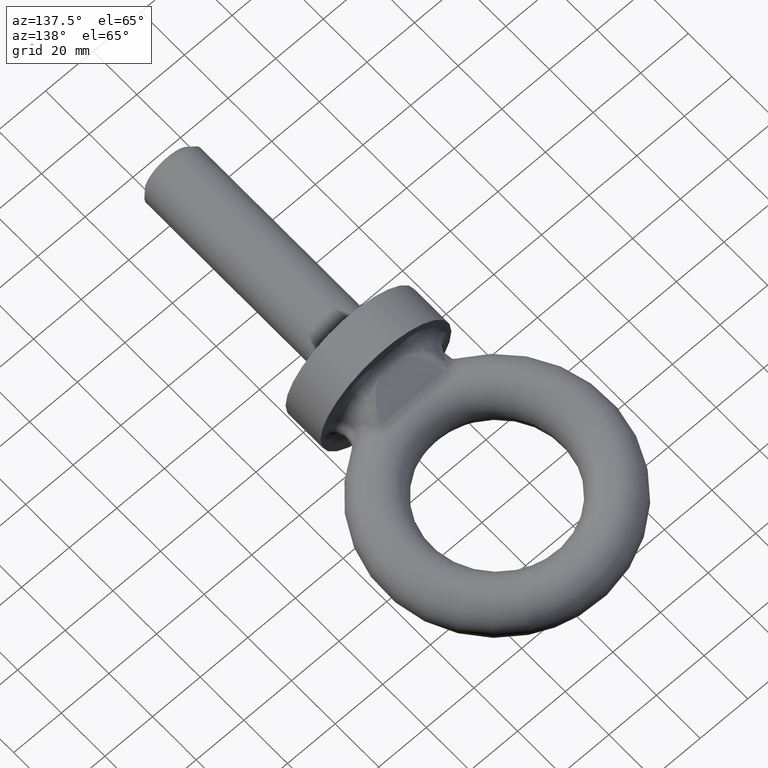
[diagram: clean part render]
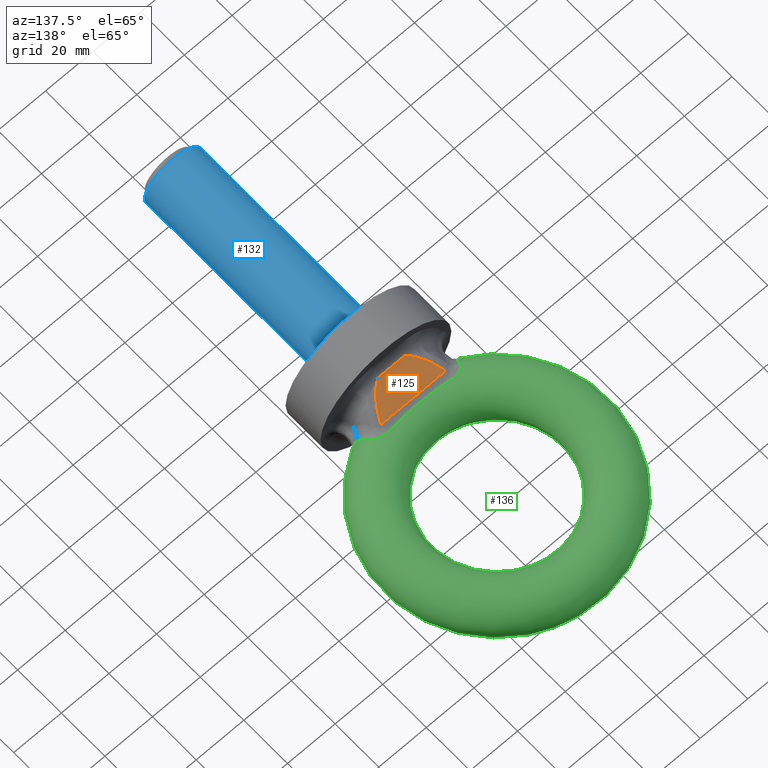
[diagram: same view with three faces highlighted in distinct colors, each labeled with its STEP entity id]
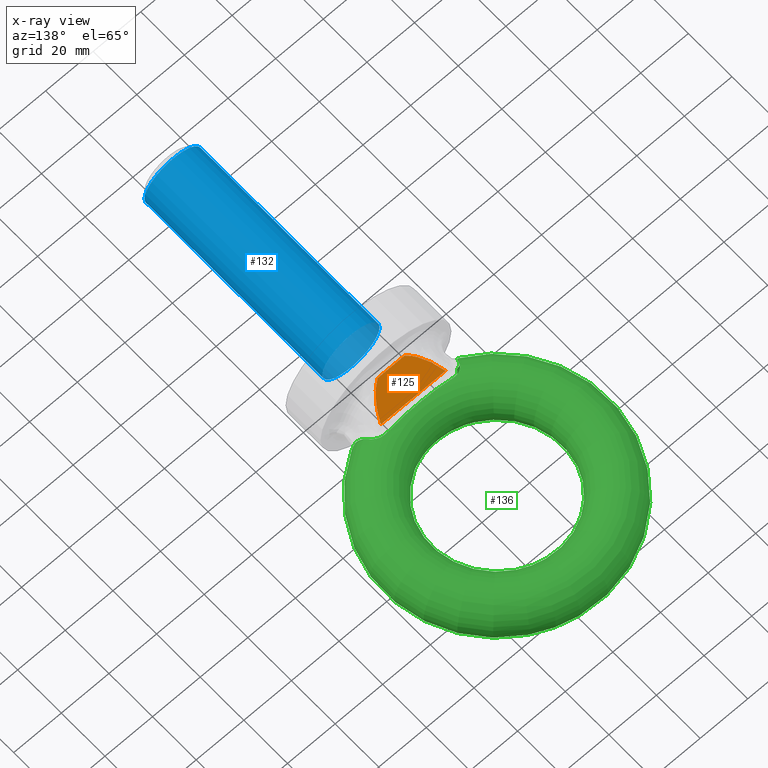
[diagram: x-ray of the same camera — body ghosted, the three highlighted faces saturated]
A machine part, auxiliary view with three faces highlighted in distinct colors.
The next image is the same camera in x-ray (body ghosted, the three faces saturated) — at least one of them is partly hidden behind the body in this view.
Their STEP definitions:

[orange] entity #125 — the highlighted planar face has unit normal (0, 0.5369, 0.8437).
#90=PLANE('',#664);
#95=LINE('',#958,#99);
#99=VECTOR('',#754,1.);
#115=ELLIPSE('',#662,29.8020681380693,16.);
#116=ELLIPSE('',#663,29.8020681380693,16.);
#125=ADVANCED_FACE('',(#188),#90,.T.);
#188=FACE_OUTER_BOUND('',#226,.T.);
#226=EDGE_LOOP('',(#329,#330,#331,#332));
#329=ORIENTED_EDGE('',*,*,#546,.T.);
#330=ORIENTED_EDGE('',*,*,#547,.T.);
#331=ORIENTED_EDGE('',*,*,#548,.T.);
#332=ORIENTED_EDGE('',*,*,#549,.T.);
#495=VERTEX_POINT('',#956);
#496=VERTEX_POINT('',#957);
#497=VERTEX_POINT('',#959);
#498=VERTEX_POINT('',#961);
#546=EDGE_CURVE('',#495,#496,#115,.T.);
#547=EDGE_CURVE('',#496,#497,#95,.T.);
#548=EDGE_CURVE('',#497,#498,#116,.T.);
#549=EDGE_CURVE('',#498,#495,#619,.T.);
#619=B_SPLINE_CURVE_WITH_KNOTS('',3,(#962,#963,#964,#965,#966,#967),
 .UNSPECIFIED.,.F.,.F.,(4,2,4),(0.,0.5,1.),.UNSPECIFIED.);
#662=AXIS2_PLACEMENT_3D('',#955,#752,#753);
#663=AXIS2_PLACEMENT_3D('',#960,#755,#756);
#664=AXIS2_PLACEMENT_3D('',#968,#757,#758);
#752=DIRECTION('',(0.,0.536875492193159,0.843661487732107));
#753=DIRECTION('',(-2.86159311182566E-18,0.843661487732107,-0.536875492193159));
#754=DIRECTION('',(1.,2.41421590200679E-18,-1.53631921036795E-18));
#755=DIRECTION('',(0.,0.536875492193159,0.843661487732107));
#756=DIRECTION('',(-2.86159311182566E-18,0.843661487732107,-0.536875492193159));
#757=DIRECTION('',(0.,0.536875492193159,0.843661487732108));
#758=DIRECTION('',(0.,-0.843661487732107,0.536875492193159));
#955=CARTESIAN_POINT('',(-2.53957528944313E-17,41.8798815578344,2.53098446319632));
#956=CARTESIAN_POINT('',(-13.5622338915121,28.5397753589314,11.0201429534073));
#957=CARTESIAN_POINT('',(-5.67805799946811,18.3735131025101,17.48958257113));
#958=CARTESIAN_POINT('',(55.,18.3735131025101,17.48958257113));
#959=CARTESIAN_POINT('',(5.67805799946812,18.3735131025101,17.48958257113));
#960=CARTESIAN_POINT('',(-2.53957528944313E-17,41.8798815578344,2.53098446319632));
#961=CARTESIAN_POINT('',(13.5600953366957,28.5344080076716,11.0235585405726));
#962=CARTESIAN_POINT('',(13.5600953366957,28.5344080076716,11.0235585405726));
#963=CARTESIAN_POINT('',(9.03966839015902,28.395960063825,11.1116617775659));
#964=CARTESIAN_POINT('',(4.51934471005141,28.6289298005924,10.9634083087139));
#965=CARTESIAN_POINT('',(-4.52143339906573,28.6246055655633,10.9661600946415));
#966=CARTESIAN_POINT('',(-9.04188650270365,28.3920785490715,11.114131832409));
#967=CARTESIAN_POINT('',(-13.562233891512,28.5397753589313,11.0201429534073));
#968=CARTESIAN_POINT('',(55.,16.,19.));

[blue] entity #132 — the highlighted cylindrical surface (bore or boss wall) has radius 12 mm, axis along (-0, 1, 0).
#80=FACE_BOUND('',#233,.T.);
#81=FACE_BOUND('',#234,.T.);
#107=CYLINDRICAL_SURFACE('',#672,12.);
#132=ADVANCED_FACE('',(#80,#81),#107,.T.);
#233=EDGE_LOOP('',(#354));
#234=EDGE_LOOP('',(#355));
#277=CIRCLE('',#670,12.);
#278=CIRCLE('',#671,12.);
#354=ORIENTED_EDGE('',*,*,#563,.T.);
#355=ORIENTED_EDGE('',*,*,#564,.F.);
#504=VERTEX_POINT('',#1133);
#505=VERTEX_POINT('',#1135);
#563=EDGE_CURVE('',#504,#504,#277,.T.);
#564=EDGE_CURVE('',#505,#505,#278,.T.);
#670=AXIS2_PLACEMENT_3D('',#1132,#770,#771);
#671=AXIS2_PLACEMENT_3D('',#1134,#772,#773);
#672=AXIS2_PLACEMENT_3D('',#1136,#774,#775);
#770=DIRECTION('',(-2.41421590200679E-18,1.,0.));
#771=DIRECTION('',(-1.,0.,0.));
#772=DIRECTION('',(-2.41421590200679E-18,1.,0.));
#773=DIRECTION('',(-1.,-2.41421590200679E-18,0.));
#774=DIRECTION('',(-2.41421590200679E-18,1.,0.));
#775=DIRECTION('',(-1.,0.,0.));
#1132=CARTESIAN_POINT('',(2.68822940688455E-16,-81.6,0.));
#1133=CARTESIAN_POINT('',(-12.,-81.6,0.));
#1134=CARTESIAN_POINT('',(7.18229230847018E-17,0.,0.));
#1135=CARTESIAN_POINT('',(-12.,-2.89705908240814E-17,0.));
#1136=CARTESIAN_POINT('',(2.74617058853272E-16,-84.,0.));

[green] entity #136 — the highlighted toroidal blend (fillet) surface has major radius 37.25 mm and minor (blend) radius 10.25 mm.
#75=TOROIDAL_SURFACE('',#682,37.25,10.25);
#136=ADVANCED_FACE('',(#195),#75,.T.);
#195=FACE_OUTER_BOUND('',#241,.T.);
#241=EDGE_LOOP('',(#373,#374,#375,#376,#377,#378,#379,#380,#381,#382,#383,
#384));
#373=ORIENTED_EDGE('',*,*,#539,.T.);
#374=ORIENTED_EDGE('',*,*,#579,.T.);
#375=ORIENTED_EDGE('',*,*,#580,.T.);
#376=ORIENTED_EDGE('',*,*,#581,.T.);
#377=ORIENTED_EDGE('',*,*,#582,.T.);
#378=ORIENTED_EDGE('',*,*,#583,.T.);
#379=ORIENTED_EDGE('',*,*,#530,.T.);
#380=ORIENTED_EDGE('',*,*,#584,.T.);
#381=ORIENTED_EDGE('',*,*,#585,.T.);
#382=ORIENTED_EDGE('',*,*,#586,.T.);
#383=ORIENTED_EDGE('',*,*,#587,.T.);
#384=ORIENTED_EDGE('',*,*,#588,.T.);
#481=VERTEX_POINT('',#876);
#482=VERTEX_POINT('',#881);
#489=VERTEX_POINT('',#916);
#490=VERTEX_POINT('',#921);
#520=VERTEX_POINT('',#1196);
#521=VERTEX_POINT('',#1201);
#522=VERTEX_POINT('',#1208);
#523=VERTEX_POINT('',#1215);
#524=VERTEX_POINT('',#1230);
#525=VERTEX_POINT('',#1235);
#526=VERTEX_POINT('',#1242);
#527=VERTEX_POINT('',#1249);
#530=EDGE_CURVE('',#482,#481,#614,.T.);
#539=EDGE_CURVE('',#490,#489,#617,.T.);
#579=EDGE_CURVE('',#489,#520,#635,.T.);
#580=EDGE_CURVE('',#520,#521,#636,.T.);
#581=EDGE_CURVE('',#521,#522,#637,.T.);
#582=EDGE_CURVE('',#522,#523,#638,.T.);
#583=EDGE_CURVE('',#523,#482,#639,.T.);
#584=EDGE_CURVE('',#481,#524,#640,.T.);
#585=EDGE_CURVE('',#524,#525,#641,.T.);
#586=EDGE_CURVE('',#525,#526,#642,.T.);
#587=EDGE_CURVE('',#526,#527,#643,.T.);
#588=EDGE_CURVE('',#527,#490,#644,.T.);
#614=B_SPLINE_CURVE_WITH_KNOTS('',3,(#877,#878,#879,#880),.UNSPECIFIED.,
 .F.,.F.,(4,4),(0.,1.),.UNSPECIFIED.);
#617=B_SPLINE_CURVE_WITH_KNOTS('',3,(#917,#918,#919,#920),.UNSPECIFIED.,
 .F.,.F.,(4,4),(0.,1.),.UNSPECIFIED.);
#635=B_SPLINE_CURVE_WITH_KNOTS('',3,(#1190,#1191,#1192,#1193,#1194,#1195),
 .UNSPECIFIED.,.F.,.F.,(4,2,4),(0.,0.5,1.),.UNSPECIFIED.);
#636=B_SPLINE_CURVE_WITH_KNOTS('',3,(#1197,#1198,#1199,#1200),
 .UNSPECIFIED.,.F.,.F.,(4,4),(0.,1.),.UNSPECIFIED.);
#637=B_SPLINE_CURVE_WITH_KNOTS('',3,(#1202,#1203,#1204,#1205,#1206,#1207),
 .UNSPECIFIED.,.F.,.F.,(4,2,4),(0.,0.5,1.),.UNSPECIFIED.);
#638=B_SPLINE_CURVE_WITH_KNOTS('',3,(#1209,#1210,#1211,#1212,#1213,#1214),
 .UNSPECIFIED.,.F.,.F.,(4,2,4),(0.,0.5,1.),.UNSPECIFIED.);
#639=B_SPLINE_CURVE_WITH_KNOTS('',3,(#1216,#1217,#1218,#1219,#1220,#1221),
 .UNSPECIFIED.,.F.,.F.,(4,2,4),(0.,0.5,1.),.UNSPECIFIED.);
#640=B_SPLINE_CURVE_WITH_KNOTS('',3,(#1222,#1223,#1224,#1225,#1226,#1227,
#1228,#1229),.UNSPECIFIED.,.F.,.F.,(4,2,2,4),(0.,0.5,0.75,1.),
 .UNSPECIFIED.);
#641=B_SPLINE_CURVE_WITH_KNOTS('',3,(#1231,#1232,#1233,#1234),
 .UNSPECIFIED.,.F.,.F.,(4,4),(0.,1.),.UNSPECIFIED.);
#642=B_SPLINE_CURVE_WITH_KNOTS('',3,(#1236,#1237,#1238,#1239,#1240,#1241),
 .UNSPECIFIED.,.F.,.F.,(4,2,4),(0.,0.5,1.),.UNSPECIFIED.);
#643=B_SPLINE_CURVE_WITH_KNOTS('',3,(#1243,#1244,#1245,#1246,#1247,#1248),
 .UNSPECIFIED.,.F.,.F.,(4,2,4),(0.,0.5,1.),.UNSPECIFIED.);
#644=B_SPLINE_CURVE_WITH_KNOTS('',3,(#1250,#1251,#1252,#1253,#1254,#1255),
 .UNSPECIFIED.,.F.,.F.,(4,2,4),(0.,0.5,1.),.UNSPECIFIED.);
#682=AXIS2_PLACEMENT_3D('',#1256,#796,#797);
#796=DIRECTION('',(0.,0.,-1.));
#797=DIRECTION('',(-1.,0.,0.));
#876=CARTESIAN_POINT('',(21.2537566685825,25.3476544270065,3.91341136858138));
#877=CARTESIAN_POINT('',(19.0355916038639,28.9138105195791,8.7788686517937));
#878=CARTESIAN_POINT('',(19.7343796624757,27.1566755917826,7.64313530935981));
#879=CARTESIAN_POINT('',(20.704983203704,25.9971067883695,5.91687220851728));
#880=CARTESIAN_POINT('',(21.2537566685825,25.3476544270065,3.91341136858138));
#881=CARTESIAN_POINT('',(19.0355916038639,28.9138105195791,8.77886865179369));
#916=CARTESIAN_POINT('',(-21.2849532670671,25.3702663515625,-3.73888776212214));
#917=CARTESIAN_POINT('',(-19.0391300583216,28.9591136672677,-8.75708808110228));
#918=CARTESIAN_POINT('',(-19.7550981471637,27.1679461507102,-7.58799765965243));
#919=CARTESIAN_POINT('',(-20.7457068890813,26.0042235816082,-5.80709330561124));
#920=CARTESIAN_POINT('',(-21.2849532670671,25.3702663515625,-3.73888776212214));
#921=CARTESIAN_POINT('',(-19.0391300583216,28.9591136672677,-8.75708808110228));
#1190=CARTESIAN_POINT('',(-21.2849532670671,25.3702663515625,-3.73888776212214));
#1191=CARTESIAN_POINT('',(-22.355992240219,25.4924885346494,-2.76798647418481));
#1192=CARTESIAN_POINT('',(-23.1901268872623,25.5926163938078,-1.45829888139813));
#1193=CARTESIAN_POINT('',(-23.1904657199435,25.5926567589696,1.4573789978017));
#1194=CARTESIAN_POINT('',(-22.35509699363,25.492386373108,2.76879801894468));
#1195=CARTESIAN_POINT('',(-21.2849532670671,25.3702663515625,3.73888776212219));
#1196=CARTESIAN_POINT('',(-21.2849532670671,25.3702663515625,3.7388877621222));
#1197=CARTESIAN_POINT('',(-21.2849532670671,25.3702663515625,3.7388877621222));
#1198=CARTESIAN_POINT('',(-20.7405386241377,26.010299577779,5.82691547715073));
#1199=CARTESIAN_POINT('',(-19.7556309537423,27.1666132060566,7.58712765011262));
#1200=CARTESIAN_POINT('',(-19.0391300583216,28.9591136672677,8.75708808110228));
#1201=CARTESIAN_POINT('',(-19.0391300583216,28.9591136672677,8.75708808110228));
#1202=CARTESIAN_POINT('',(-19.0391300583216,28.9591136672677,8.75708808110228));
#1203=CARTESIAN_POINT('',(-18.6696146622267,29.8835458936027,9.36046261257262));
#1204=CARTESIAN_POINT('',(-17.8583732303424,30.705518463554,9.76852394196188));
#1205=CARTESIAN_POINT('',(-15.7910911580704,31.6519084468585,10.1800531460934));
#1206=CARTESIAN_POINT('',(-14.5944238218335,31.7538661167648,10.2125781643952));
#1207=CARTESIAN_POINT('',(-13.4459455948729,31.5955653183357,10.2292720520229));
#1208=CARTESIAN_POINT('',(-13.4459455948729,31.5955653183357,10.2292720520229));
#1209=CARTESIAN_POINT('',(-13.4459455948729,31.5955653183357,10.2292720520229));
#1210=CARTESIAN_POINT('',(-8.98637865730711,30.9808797367613,10.2940947953509));
#1211=CARTESIAN_POINT('',(-4.48723364979182,30.8375919358898,10.1931823117304));
#1212=CARTESIAN_POINT('',(4.4979724839638,30.8334770890977,10.1915471810445));
#1213=CARTESIAN_POINT('',(8.9845614879495,30.9693985194918,10.2923449666467));
#1214=CARTESIAN_POINT('',(13.4515810951644,31.5734716099178,10.2315491101331));
#1215=CARTESIAN_POINT('',(13.4515810951644,31.5734716099178,10.2315491101331));
#1216=CARTESIAN_POINT('',(13.4515810951644,31.5734716099178,10.2315491101331));
#1217=CARTESIAN_POINT('',(14.599252914815,31.7286707636828,10.2159293686931));
#1218=CARTESIAN_POINT('',(15.7838350075099,31.6256187778321,10.1870334480407));
#1219=CARTESIAN_POINT('',(17.8567541577332,30.6690580207512,9.78247039742784));
#1220=CARTESIAN_POINT('',(18.6668344340796,29.8410674967386,9.37820604433257));
#1221=CARTESIAN_POINT('',(19.0355916038639,28.9138105195791,8.7788686517937));
#1222=CARTESIAN_POINT('',(21.2537566685825,25.3476544270065,3.91341136858138));
#1223=CARTESIAN_POINT('',(22.4213613288639,25.4802164067674,2.91881406866639));
#1224=CARTESIAN_POINT('',(23.355543632402,25.5923732215911,1.53921707821773));
#1225=CARTESIAN_POINT('',(23.3588535007638,25.5927675264159,-0.761066183449529));
#1226=CARTESIAN_POINT('',(23.1264346909904,25.5649562975409,-1.51807489560818));
#1227=CARTESIAN_POINT('',(22.3530346064136,25.4739916606224,-2.85145915261602));
#1228=CARTESIAN_POINT('',(21.8376093201116,25.4139411300389,-3.41606985350128));
#1229=CARTESIAN_POINT('',(21.2537566685825,25.3476544270066,-3.91341136858143));
#1230=CARTESIAN_POINT('',(21.2537566685825,25.3476544270066,-3.91341136858144));
#1231=CARTESIAN_POINT('',(21.2537566685825,25.3476544270066,-3.91341136858144));
#1232=CARTESIAN_POINT('',(20.6997126285084,26.0033443120939,-5.93611401170936));
#1233=CARTESIAN_POINT('',(19.7352392925657,27.1545140121197,-7.64173816104942));
#1234=CARTESIAN_POINT('',(19.0355916038639,28.9138105195791,-8.7788686517937));
#1235=CARTESIAN_POINT('',(19.0355916038639,28.9138105195791,-8.7788686517937));
#1236=CARTESIAN_POINT('',(19.0355916038639,28.9138105195791,-8.7788686517937));
#1237=CARTESIAN_POINT('',(18.667033458626,29.8405670403016,-9.37788257169935));
#1238=CARTESIAN_POINT('',(17.858563634613,30.6662892147959,-9.78114863385374));
#1239=CARTESIAN_POINT('',(15.7959729794489,31.6219384247611,-10.1856266232107));
#1240=CARTESIAN_POINT('',(14.5998669673705,31.7287538017389,-10.2159210114764));
#1241=CARTESIAN_POINT('',(13.4515810951644,31.5734716099178,-10.2315491101331));
#1242=CARTESIAN_POINT('',(13.4515810951644,31.5734716099178,-10.2315491101331));
#1243=CARTESIAN_POINT('',(13.4515810951644,31.5734716099178,-10.2315491101331));
#1244=CARTESIAN_POINT('',(8.99129796754664,30.9703094906552,-10.2922532835821));
#1245=CARTESIAN_POINT('',(4.49304352802707,30.8333598697257,-10.1915006128178));
#1246=CARTESIAN_POINT('',(-4.49141014981778,30.8377134463248,-10.1932305851));
#1247=CARTESIAN_POINT('',(-8.98357494871607,30.9804932868501,-10.2941355491026));
#1248=CARTESIAN_POINT('',(-13.4459455948729,31.5955653183354,-10.2292720520232));
#1249=CARTESIAN_POINT('',(-13.4459455948729,31.5955653183357,-10.2292720520229));
#1250=CARTESIAN_POINT('',(-13.4459455948729,31.5955653183357,-10.2292720520229));
#1251=CARTESIAN_POINT('',(-14.593814834136,31.7537821767853,-10.2125870164326));
#1252=CARTESIAN_POINT('',(-15.7793966133255,31.6553343077252,-10.1814063897477));
#1253=CARTESIAN_POINT('',(-17.8561676323578,30.7084431428971,-9.76993126087461));
#1254=CARTESIAN_POINT('',(-18.669416757917,29.8840409991479,-9.36078576668582));
#1255=CARTESIAN_POINT('',(-19.0391300583216,28.9591136672677,-8.75708808110228));
#1256=CARTESIAN_POINT('',(0.0837289890841739,67.,0.));